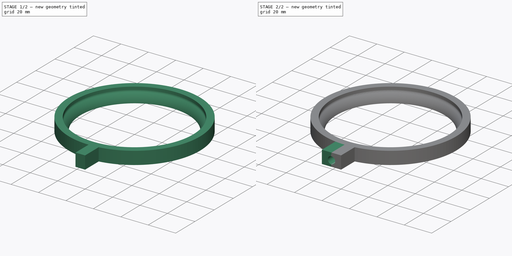
[diagram: build sequence overview — one tinted view per stage of 2, left to right]
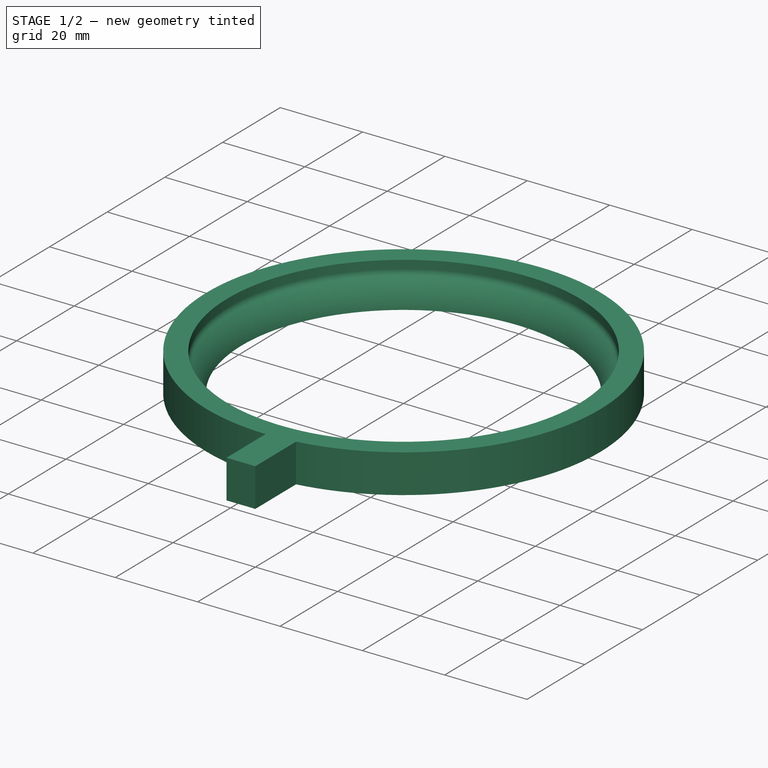
[diagram: stage 1 of 2 — iso view after this stage's code; geometry added in this stage tinted green]
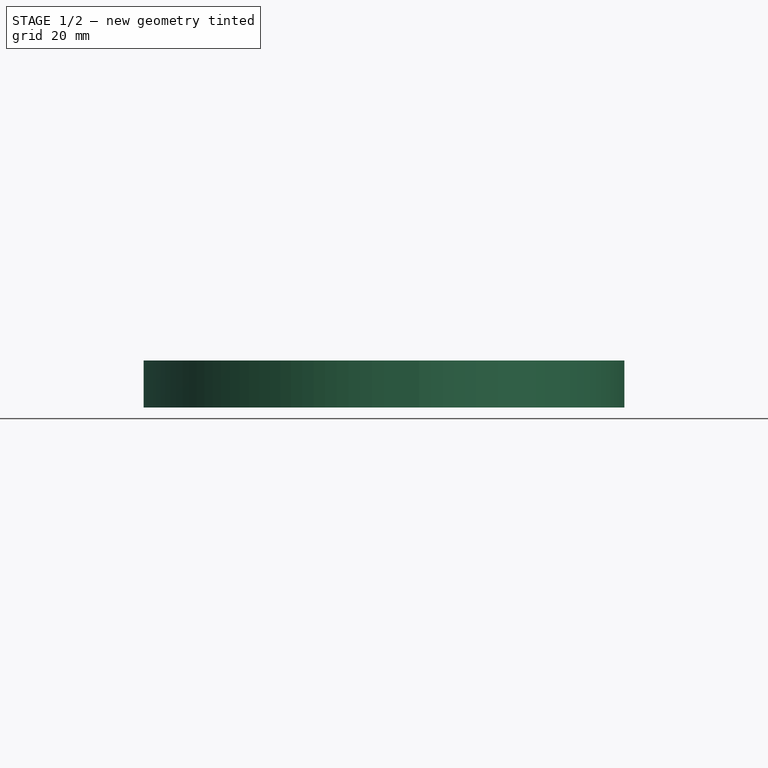
[diagram: stage 1 of 2 — front view after this stage's code; geometry added in this stage tinted green]
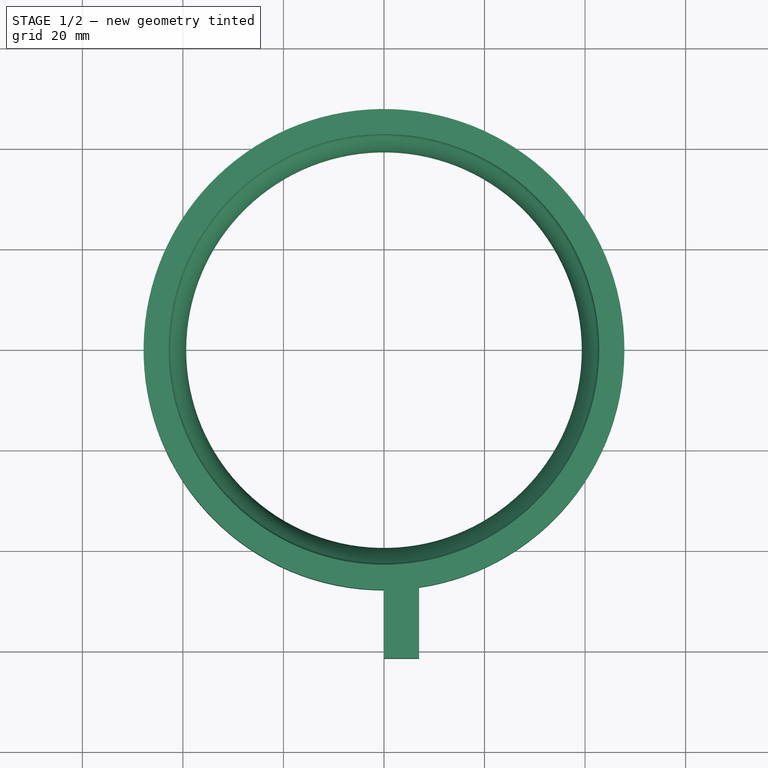
[diagram: stage 1 of 2 — top view after this stage's code; geometry added in this stage tinted green]
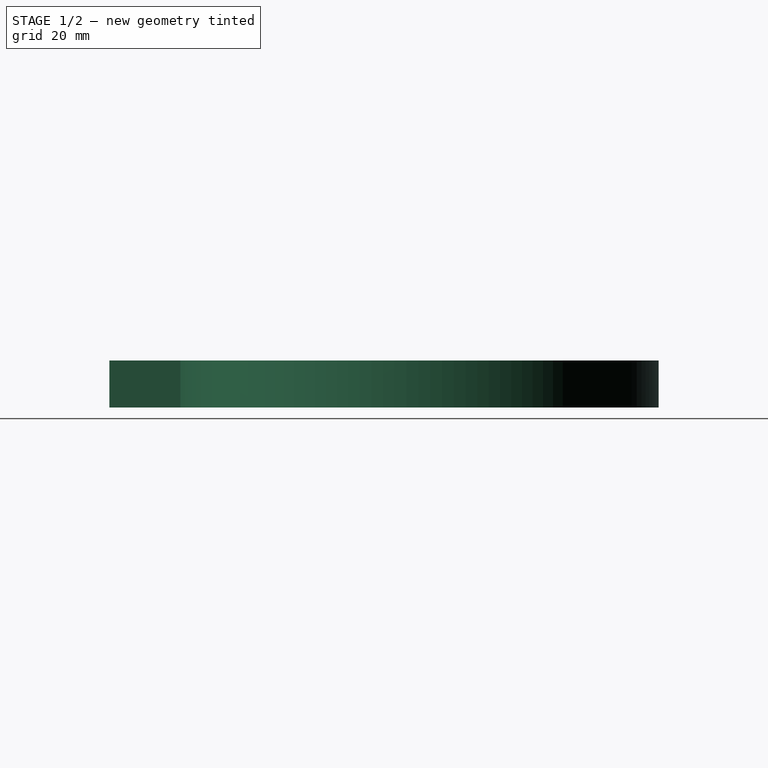
[diagram: stage 1 of 2 — right view after this stage's code; geometry added in this stage tinted green]
FCSTD DOCUMENT  (FreeCAD 0.19R24291 (Git))
Label: ferris wheel ring 2
License: All rights reserved
LicenseURL: http://en.wikipedia.org/wiki/All_rights_reserved
objects: Sketcher::SketchObject×4, PartDesign::Revolution×1, PartDesign::Plane×1, PartDesign::Pad×1, PartDesign::Mirrored×1, PartDesign::Groove×1, PartDesign::Body×1
note: 13 computed .brp shape members not serialized (recipe doc carries the construction recipe); baked Part::Feature solids carry a one-line shape summary decoded from their .brp

FEATURE [Sketcher::SketchObject] Sketch
  FullyConstrained = false
  MapMode = 5
  Placement = pos=(0,0,0) rot=(1,0,0;1.5708rad)
  Support = -> [XZ_Plane]
  sketch-geometry (11):
    g0: LineSegment StartX=42.5 StartY=51 StartZ=0 EndX=42.5 EndY=58 EndZ=0
    g1: LineSegment StartX=42.5 StartY=58 StartZ=0 EndX=55.07 EndY=58 EndZ=0
    g2: ArcOfCircle CenterX=41 CenterY=51 CenterZ=0 NormalX=0 NormalY=0 NormalZ=1 AngleXU=0 Radius=1.5 StartAngle=6.02364 EndAngle=6.28319
    g3: ArcOfCircle CenterX=49.6859 CenterY=43.3555 CenterZ=0 NormalX=0 NormalY=0 NormalZ=1 AngleXU=0 Radius=10.25 StartAngle=2.35458 EndAngle=3.0297
    g4: LineSegment StartX=39.5 StartY=44.5 StartZ=0 EndX=34.5 EndY=0 EndZ=0
    g5: ArcOfCircle CenterX=49.6599 CenterY=42.538 CenterZ=0 NormalX=0 NormalY=0 NormalZ=1 AngleXU=0 Radius=10.3845 StartAngle=2.35909 EndAngle=3.02163
    g6: ArcOfCircle CenterX=40.9999 CenterY=51.148 CenterZ=0 NormalX=0 NormalY=0 NormalZ=1 AngleXU=0 Radius=1.82728 StartAngle=5.50069 EndAngle=6.28318
    g7: LineSegment StartX=42.8272 StartY=51.148 StartZ=0 EndX=42.8272 EndY=53.148 EndZ=0
    g8: LineSegment StartX=42.8272 StartY=53.148 StartZ=0 EndX=47.8272 EndY=53.148 EndZ=0
    g9: LineSegment StartX=47.8272 StartY=53.148 StartZ=0 EndX=47.8272 EndY=43.7808 EndZ=0
    g10: LineSegment StartX=47.8272 StartY=43.7808 StartZ=0 EndX=39.35 EndY=43.7808 EndZ=0
  constraints (35):
    c: Vertical(g0)
    c: Coincident(g1,g0)
    c: Horizontal(g1)
    c: Coincident(g2,g0)
    c: Tangent(g0,g2)
    c: Diameter(g2) = 3
    c: Coincident(g4,g3)
    c: PointOnObject(g4,g-1)
    c: Distance(g4,g-1) = 34.5
    c: Diameter(g3) = 20.5
    c: Tangent(g3,g4)
    c: Distance(g0,g-2) = 42.5
    c: Distance(g3,g-2) = 39.5
    c: Distance(g0) = 7
    c: Distance(g0,g-1) = 58
    c: DistanceY(g3,g0) = 6.5
    c: Coincident(g2,g3)
    c: Coincident(g6,g5)
    c: Coincident(g7,g6)
    c: Vertical(g7)
    c: Coincident(g8,g7)
    c: Horizontal(g8)
    c: Coincident(g9,g8)
    c: Vertical(g9)
    c: Coincident(g10,g9)
    c: Coincident(g10,g5)
    c: Horizontal(g10)
    c: Tangent(g7,g6)
    c: Tangent(g6,g5)
    c: DistanceX(g5) = 39.35
    c: DistanceY(g5) = 43.7808
    c: Distance(g7) = 2
    c: Distance(g8) = 5
    c: DistanceX(g5) = 42.2957
    c: DistanceY(g5) = 49.8597
FEATURE [PartDesign::Revolution] Revolution
  Angle = 360
  Axis = (0,2e-16,1)
  Base = (0,0,0)
  Placement = pos=(0,0,0) rot=(1,0,0;1.5708rad)
  Profile = -> Sketch
  ReferenceAxis = -> Sketch [V_Axis]
  Reversed = true
FEATURE [Sketcher::SketchObject] Sketch001
  FullyConstrained = false
  MapMode = 5
  Support = -> [XY_Plane]
  sketch-geometry (4):
    g0: LineSegment StartX=7 StartY=-46.8219 StartZ=0 EndX=0 EndY=-46.8219 EndZ=0
    g1: LineSegment StartX=0 StartY=-46.8219 StartZ=0 EndX=0 EndY=-60.7188 EndZ=0
    g2: LineSegment StartX=0 StartY=-60.7188 StartZ=0 EndX=7 EndY=-60.7188 EndZ=0
    g3: LineSegment StartX=7 StartY=-60.7188 StartZ=0 EndX=7 EndY=-46.8219 EndZ=0
  constraints (10):
    c: Coincident(g0,g1)
    c: Coincident(g1,g2)
    c: Coincident(g2,g3)
    c: Coincident(g3,g0)
    c: Horizontal(g0)
    c: Horizontal(g2)
    c: Vertical(g1)
    c: Vertical(g3)
    c: PointOnObject(g1,g-2)
    c: Distance(g2) = 7
FEATURE [PartDesign::Plane] DatumPlane
  Length = 115.961
  MapMode = 5
  Placement = pos=(0,2.92e-14,43.7808) rot=(0,0,1;3.14159rad)
  ResizeMode = 0
  Support = -> [Revolution]
  Width = 129.629
FEATURE [Sketcher::SketchObject] Sketch002
  FullyConstrained = false
  MapMode = 5
  Placement = pos=(0,2.92e-14,43.7808) rot=(0,0,1;3.14159rad)
  Support = -> [DatumPlane]
  sketch-geometry (4):
    g0: LineSegment StartX=0 StartY=61.4318 StartZ=0 EndX=-7 EndY=61.4318 EndZ=0
    g1: LineSegment StartX=-7 StartY=61.4318 StartZ=0 EndX=-7 EndY=46.6425 EndZ=0
    g2: LineSegment StartX=-7 StartY=46.6425 StartZ=0 EndX=0 EndY=46.6425 EndZ=0
    g3: LineSegment StartX=0 StartY=46.6425 StartZ=0 EndX=0 EndY=61.4318 EndZ=0
  constraints (10):
    c: Coincident(g0,g1)
    c: Coincident(g1,g2)
    c: Coincident(g2,g3)
    c: Coincident(g3,g0)
    c: Horizontal(g0)
    c: Horizontal(g2)
    c: Vertical(g1)
    c: Vertical(g3)
    c: PointOnObject(g0,g-2)
    c: Distance(g0) = 7
FEATURE [PartDesign::Pad] Pad
  BaseFeature = -> Revolution
  Direction = (1,1,1)
  Length = 10
  Length2 = 100
  Placement = pos=(0,0,0) rot=(1,0,0;1.5708rad)
  Profile = -> Sketch002
  Type = 3
  UpToFace = -> Revolution [Face4]
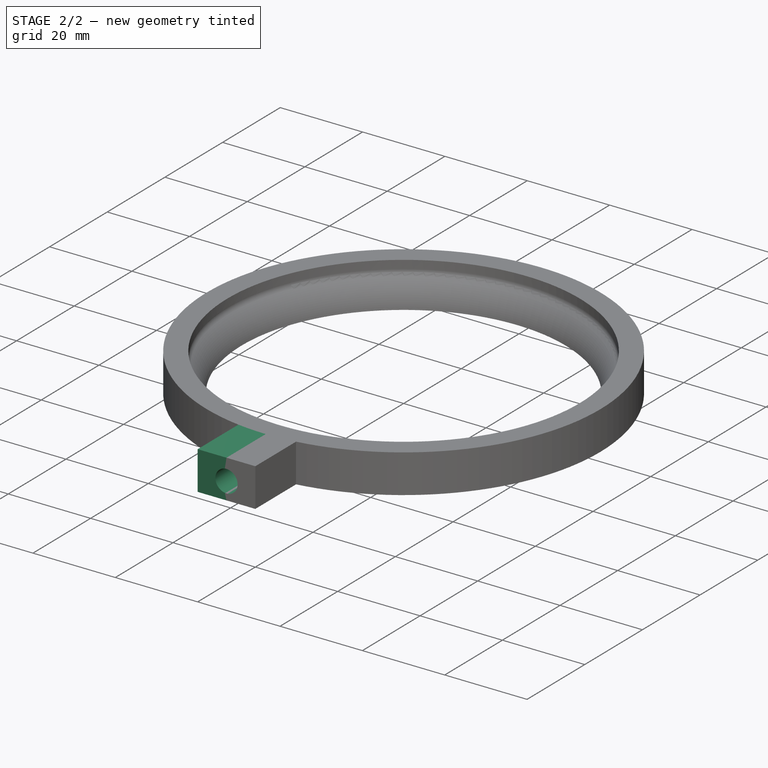
[diagram: stage 2 of 2 — iso view after this stage's code; geometry added in this stage tinted green]
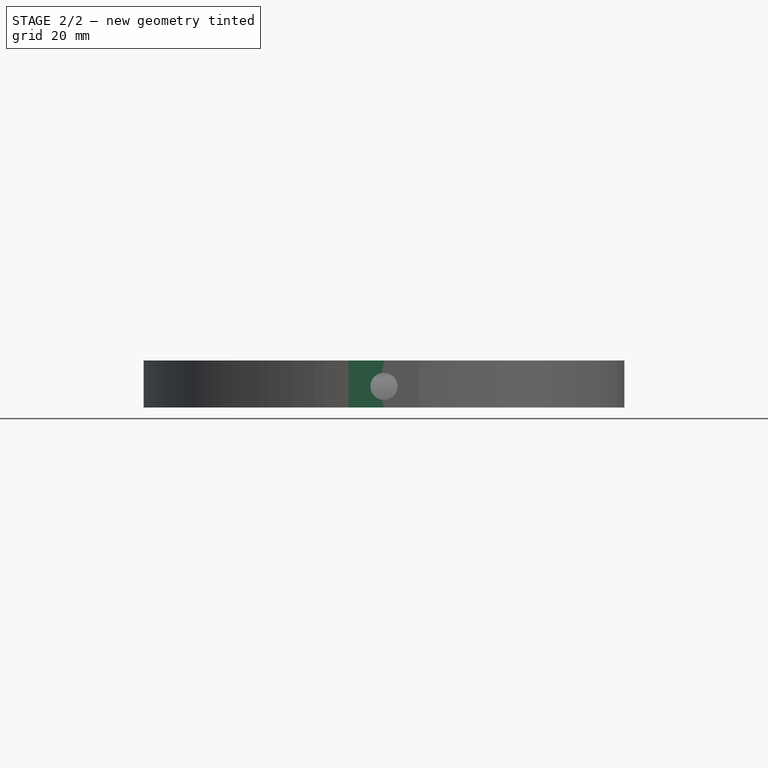
[diagram: stage 2 of 2 — front view after this stage's code; geometry added in this stage tinted green]
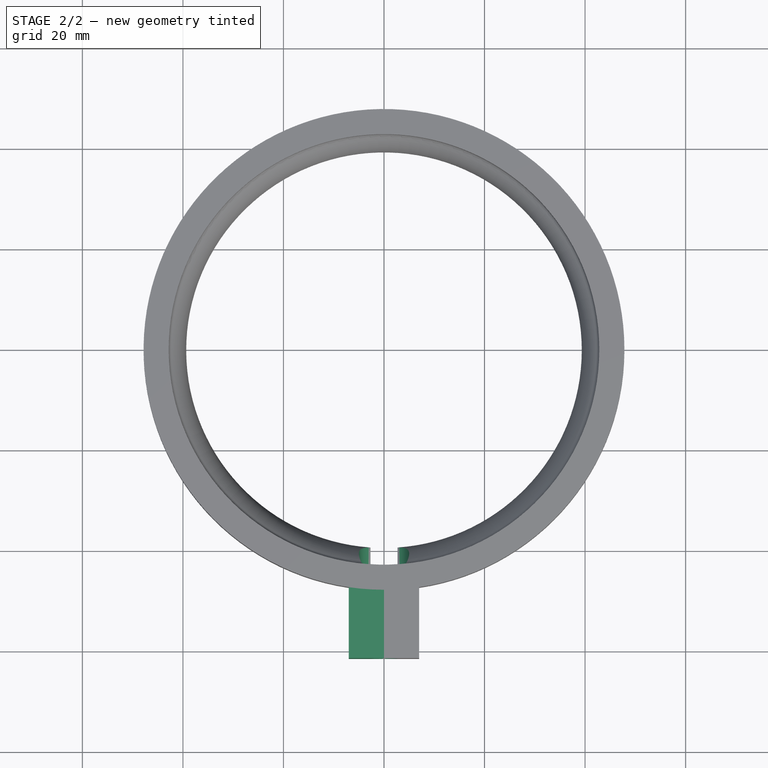
[diagram: stage 2 of 2 — top view after this stage's code; geometry added in this stage tinted green]
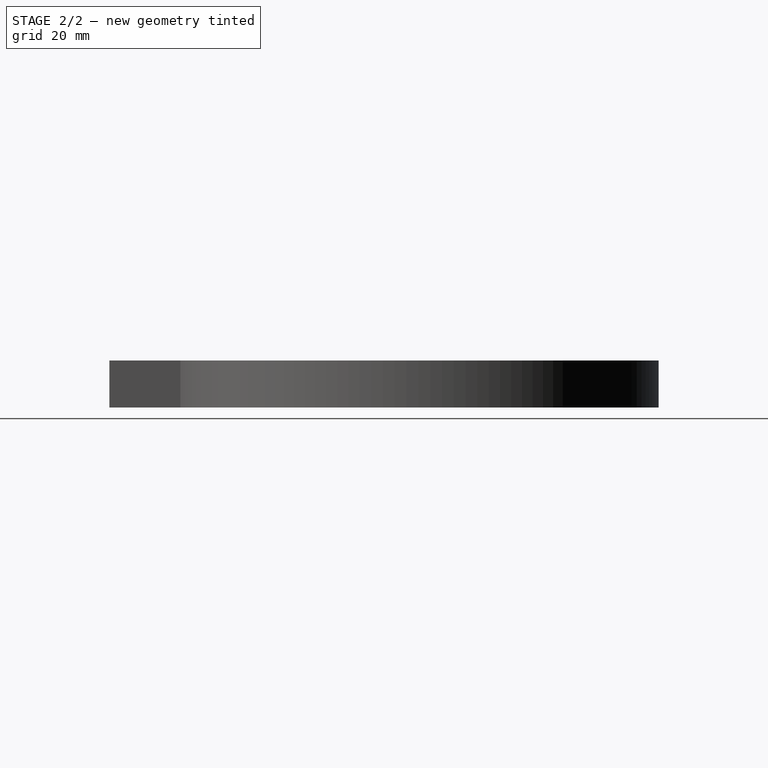
[diagram: stage 2 of 2 — right view after this stage's code; geometry added in this stage tinted green]
FEATURE [PartDesign::Mirrored] Mirrored
  BaseFeature = -> Pad
  MirrorPlane = -> Sketch002 [V_Axis]
  Originals = -> [Pad]
  Placement = pos=(0,0,0) rot=(1,0,0;1.5708rad)
FEATURE [Sketcher::SketchObject] Sketch003
  AttachmentOffset = pos=(-43,48,0) rot=(0,0,1;0rad)
  FullyConstrained = false
  MapMode = 5
  Placement = pos=(-2.02e-14,-43,48) rot=(0.57735,0.57735,0.57735;2.0944rad)
  Support = -> [YZ_Plane]
  sketch-geometry (6):
    g0: LineSegment StartX=0 StartY=5 StartZ=0 EndX=-2 EndY=2.69358 EndZ=0
    g1: LineSegment StartX=-2 StartY=2.69358 StartZ=0 EndX=-42.2228 EndY=2.69358 EndZ=0
    g2: LineSegment StartX=-42.2228 StartY=2.69358 StartZ=0 EndX=-42.4089 EndY=0 EndZ=0
    g3: LineSegment StartX=-42.4089 StartY=0 StartZ=0 EndX=36.1925 EndY=0 EndZ=0
    g4: LineSegment StartX=36.1925 StartY=0 StartZ=0 EndX=36.1925 EndY=5 EndZ=0
    g5: LineSegment StartX=36.1925 StartY=5 StartZ=0 EndX=0 EndY=5 EndZ=0
  constraints (15):
    c: PointOnObject(g0,g-2)
    c: Coincident(g0,g1)
    c: Horizontal(g1)
    c: Coincident(g1,g2)
    c: PointOnObject(g2,g-1)
    c: Coincident(g2,g3)
    c: PointOnObject(g3,g-1)
    c: Coincident(g3,g4)
    c: Vertical(g4)
    c: Coincident(g4,g5)
    c: Coincident(g5,g0)
    c: Horizontal(g5)
    c: Distance(g0,g-1) = 5
    c: Distance(g2) = 2.7
    c: Distance(g0,g-2) = 2
FEATURE [PartDesign::Groove] Groove
  Angle = 360
  Axis = (3e-16,1,-2e-16)
  Base = (-2.02e-14,-43,48)
  BaseFeature = -> Mirrored
  Placement = pos=(0,0,0) rot=(1,0,0;1.5708rad)
  Profile = -> Sketch003
  ReferenceAxis = -> Sketch003 [H_Axis]
  Reversed = true
FEATURE [PartDesign::Body] Body
  Group = -> [Sketch,Revolution,Sketch001,DatumPlane,Sketch002,Pad,Mirrored,Sketch003,Groove]
  Origin = -> Origin
  Tip = -> Groove
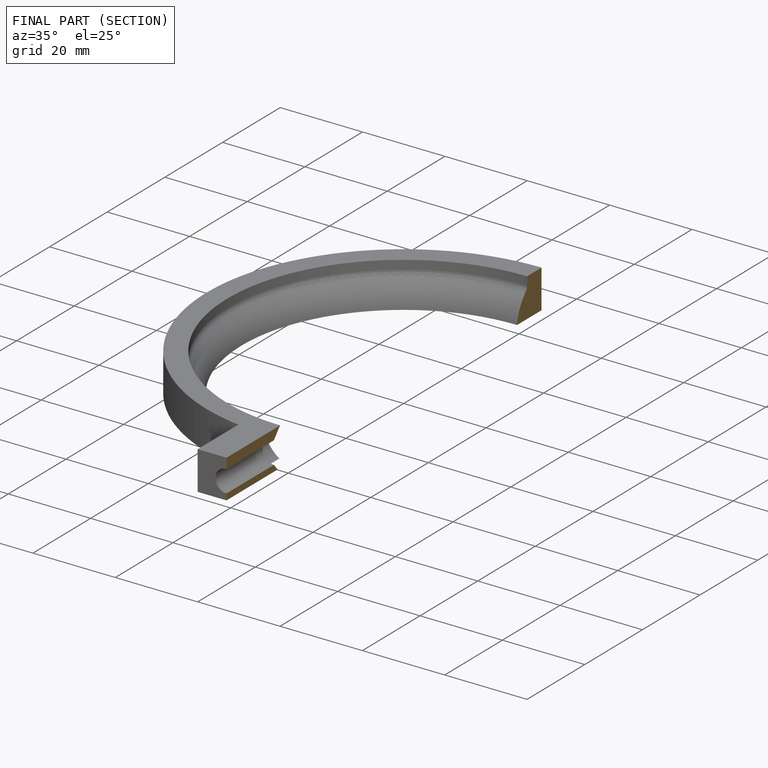
[diagram: finished part — half-section view (interior)]
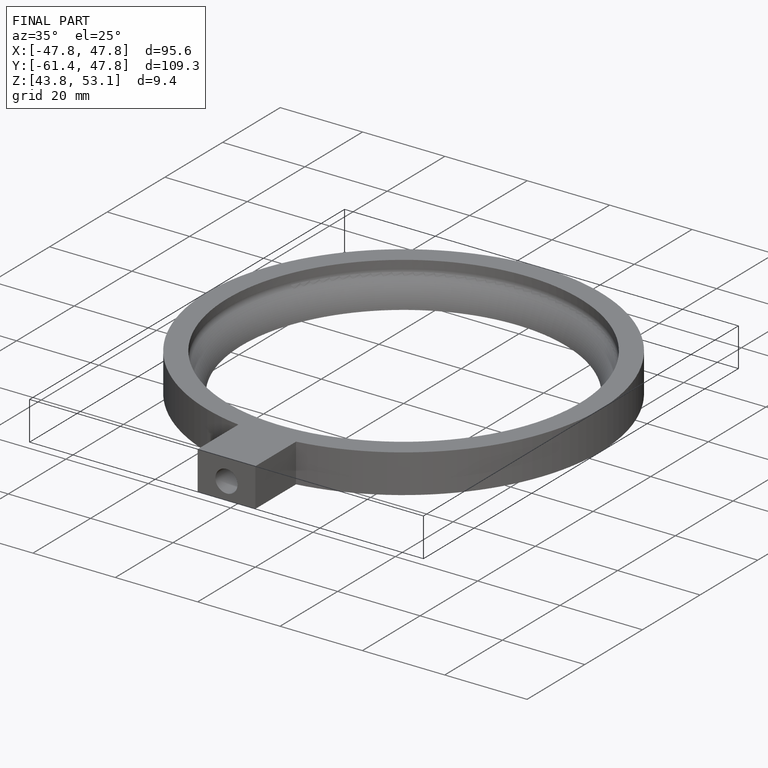
[diagram: finished part — iso view with bounding-box wireframe]
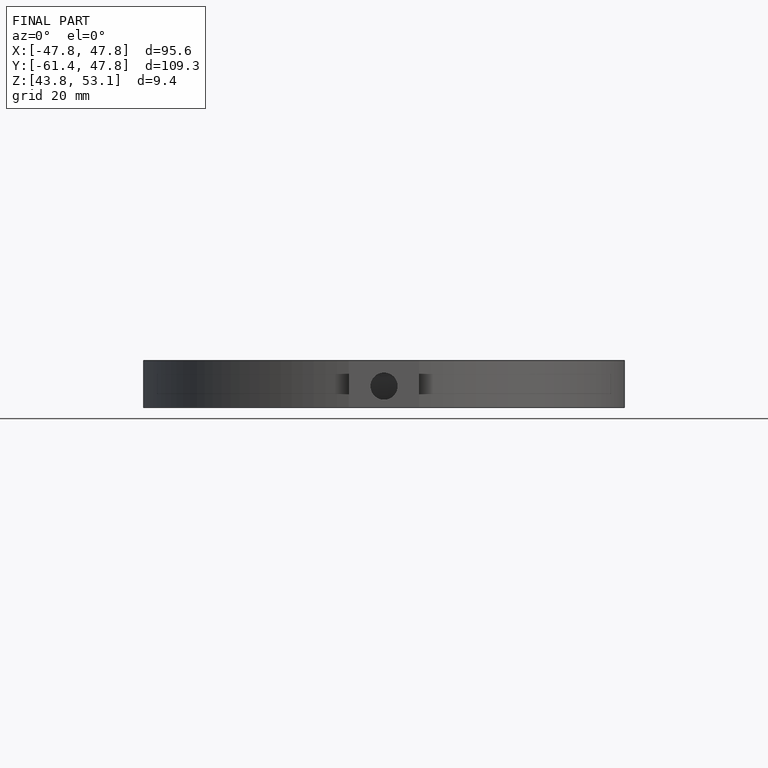
[diagram: finished part — front view with bounding-box wireframe]
